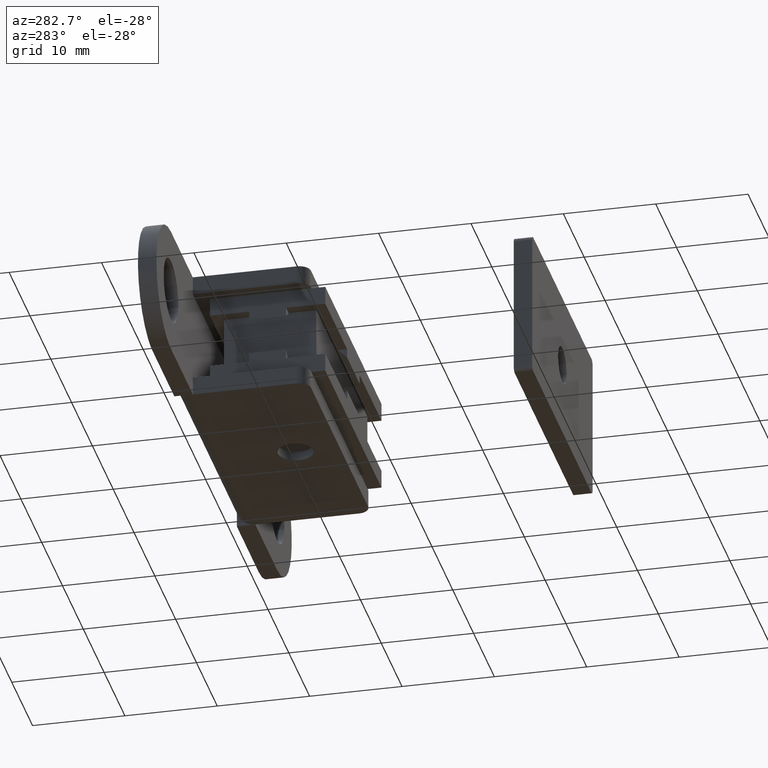
[diagram: clean part render]
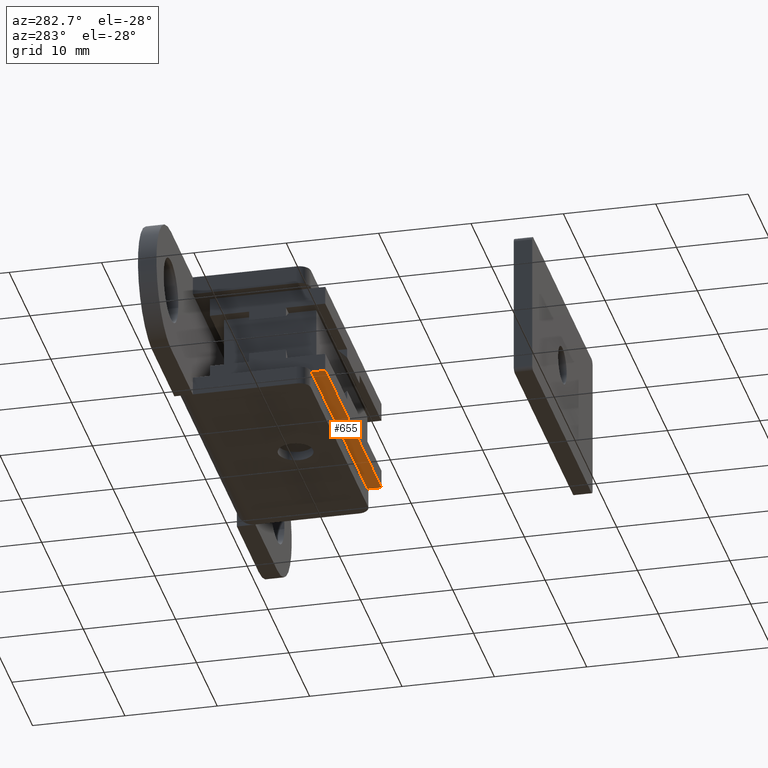
[diagram: same view with one face highlighted and labeled with its STEP entity id]
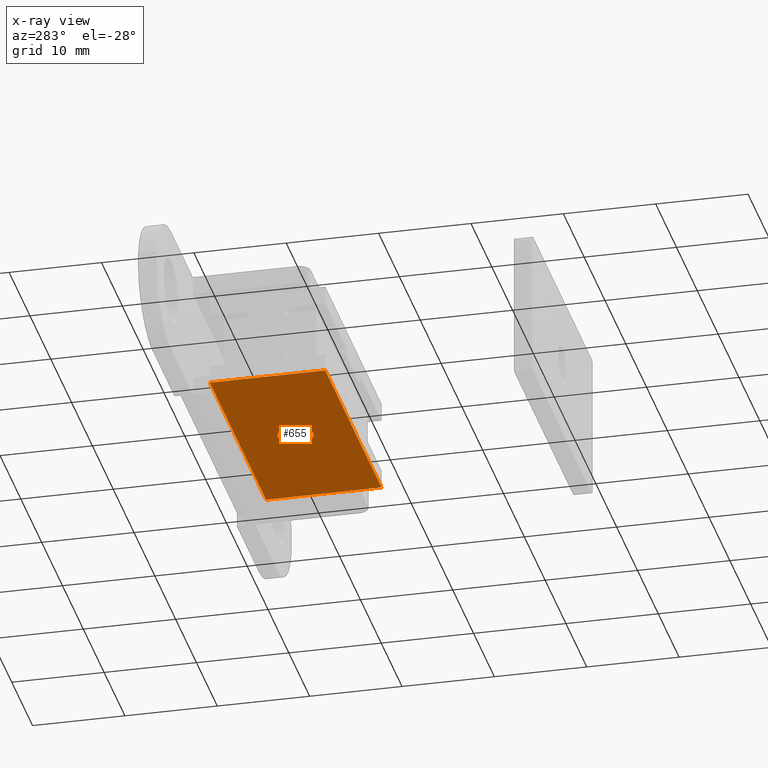
[diagram: x-ray of the same camera — body ghosted, the highlighted face saturated]
A machine part, auxiliary view. The second image highlights one B-rep face of the part: STEP entity #655.
The next image is the same camera in x-ray: the body ghosted, the highlighted face saturated — about 0% of this face is hidden behind the body in this view.
In plain terms, the highlighted face is a freeform B-spline surface patch.
Its self-contained STEP definition (entity closure, byte-faithful):
#62=CARTESIAN_POINT('',(0.235843204208232,-11.635305806236429,5.0));
#63=VERTEX_POINT('',#62);
#64=CARTESIAN_POINT('',(1.900000000000001,-9.750000000000000,5.0));
#65=VERTEX_POINT('',#64);
#66=CARTESIAN_POINT('',(0.235843204208232,-11.635305806236428,5.0));
#67=CARTESIAN_POINT('',(1.900000000000001,-11.427127339825427,5.0));
#68=CARTESIAN_POINT('',(1.900000000000001,-9.750000000000000,5.0));
#76=(BOUNDED_CURVE()B_SPLINE_CURVE(2,(#66,#67,#68),.UNSPECIFIED.,.F.,.U.)B_SPLINE_CURVE_WITH_KNOTS((3,3),(0.271473929016600,0.500000000000000),.UNSPECIFIED.)CURVE()GEOMETRIC_REPRESENTATION_ITEM()RATIONAL_B_SPLINE_CURVE((0.954005430185646,0.732265053947522,1.0))REPRESENTATION_ITEM(''));
#77=EDGE_CURVE('',#63,#65,#76,.T.);
#79=CARTESIAN_POINT('',(-0.016580417801258,-7.850072346181166,5.0));
#80=VERTEX_POINT('',#79);
#81=CARTESIAN_POINT('',(1.900000000000001,-9.750000000000000,5.0));
#82=CARTESIAN_POINT('',(1.900000000000001,-7.849999999999999,4.999999999999999));
#83=CARTESIAN_POINT('',(1.193991E-015,-7.850000000000000,5.0));
#84=CARTESIAN_POINT('',(-0.008290366913696,-7.850000000000000,5.0));
#85=CARTESIAN_POINT('',(-0.016580417801258,-7.850072346181166,5.0));
#93=(BOUNDED_CURVE()B_SPLINE_CURVE(2,(#81,#82,#83,#84,#85),.UNSPECIFIED.,.F.,.U.)B_SPLINE_CURVE_WITH_KNOTS((3,2,3),(0.500000000000000,0.750000000000000,0.751539894400690),.UNSPECIFIED.)CURVE()GEOMETRIC_REPRESENTATION_ITEM()RATIONAL_B_SPLINE_CURVE((1.0,0.707106781186547,1.0,0.998195901489397,0.996414027948352))REPRESENTATION_ITEM(''));
#94=EDGE_CURVE('',#65,#80,#93,.T.);
#165=CARTESIAN_POINT('',(-1.899999999999999,-9.750000000000000,5.0));
#166=VERTEX_POINT('',#165);
#167=CARTESIAN_POINT('',(-1.899999999999999,-9.750000000000000,5.0));
#168=CARTESIAN_POINT('',(-1.899999999999998,-11.650000000000000,4.999999999999999));
#169=CARTESIAN_POINT('',(1.193991E-015,-11.650000000000000,5.0));
#170=CARTESIAN_POINT('',(0.118379362573198,-11.650000000000004,4.999999999999999));
#171=CARTESIAN_POINT('',(0.235843204208232,-11.635305806236428,4.999999999999999));
#179=(BOUNDED_CURVE()B_SPLINE_CURVE(2,(#167,#168,#169,#170,#171),.UNSPECIFIED.,.F.,.U.)B_SPLINE_CURVE_WITH_KNOTS((3,2,3),(0.0,0.250000000000000,0.271473929016600),.UNSPECIFIED.)CURVE()GEOMETRIC_REPRESENTATION_ITEM()RATIONAL_B_SPLINE_CURVE((1.0,0.707106781186547,1.0,0.974841727239025,0.954005430185646))REPRESENTATION_ITEM(''));
#180=EDGE_CURVE('',#166,#63,#179,.T.);
#214=CARTESIAN_POINT('',(-0.016580417801258,-7.850072346181167,5.0));
#215=CARTESIAN_POINT('',(-1.899999999999999,-7.866508700572134,4.999999999999999));
#216=CARTESIAN_POINT('',(-1.899999999999999,-9.750000000000000,5.0));
#224=(BOUNDED_CURVE()B_SPLINE_CURVE(2,(#214,#215,#216),.UNSPECIFIED.,.F.,.U.)B_SPLINE_CURVE_WITH_KNOTS((3,3),(0.751539894400691,1.0),.UNSPECIFIED.)CURVE()GEOMETRIC_REPRESENTATION_ITEM()RATIONAL_B_SPLINE_CURVE((0.996414027948349,0.708910879697152,1.0))REPRESENTATION_ITEM(''));
#225=EDGE_CURVE('',#80,#166,#224,.T.);
#547=CARTESIAN_POINT('',(-13.500000000000000,-3.500000000000085,5.0));
#548=VERTEX_POINT('',#547);
#571=CARTESIAN_POINT('',(-13.500000000000000,-16.0,5.0));
#572=VERTEX_POINT('',#571);
#578=CARTESIAN_POINT('',(-13.500000000000000,-16.0,5.0));
#579=CARTESIAN_POINT('',(-13.500000000000000,-3.500000000000085,5.0));
#580=QUASI_UNIFORM_CURVE('',1,(#578,#579),.UNSPECIFIED.,.F.,.U.);
#581=EDGE_CURVE('',#572,#548,#580,.T.);
#591=CARTESIAN_POINT('',(13.500000000000000,-3.500000000000085,5.0));
#592=VERTEX_POINT('',#591);
#600=CARTESIAN_POINT('',(13.500000000000000,-16.0,5.0));
#601=VERTEX_POINT('',#600);
#602=CARTESIAN_POINT('',(13.500000000000000,-16.0,5.0));
#603=CARTESIAN_POINT('',(13.500000000000000,-3.500000000000085,5.0));
#604=QUASI_UNIFORM_CURVE('',1,(#602,#603),.UNSPECIFIED.,.F.,.U.);
#605=EDGE_CURVE('',#601,#592,#604,.T.);
#630=CARTESIAN_POINT('',(-14.848649947668759,-2.875625024227514,5.0));
#631=CARTESIAN_POINT('',(-14.848649947668759,-16.624375311048698,5.0));
#632=CARTESIAN_POINT('',(14.848650671865190,-2.875625024227514,5.0));
#633=CARTESIAN_POINT('',(14.848650671865190,-16.624375311048698,5.0));
#634=B_SPLINE_SURFACE_WITH_KNOTS('',1,1,((#630,#632),(#631,#633)),.UNSPECIFIED.,.F.,.F.,.U.,(2,2),(2,2),(0.0,13.748750286821190),(0.0,29.697300619533959),.UNSPECIFIED.);
#635=ORIENTED_EDGE('',*,*,#581,.F.);
#636=CARTESIAN_POINT('',(13.500000000000000,-16.0,5.0));
#637=CARTESIAN_POINT('',(-13.500000000000000,-16.0,5.0));
#638=QUASI_UNIFORM_CURVE('',1,(#636,#637),.UNSPECIFIED.,.F.,.U.);
#639=EDGE_CURVE('',#601,#572,#638,.T.);
#640=ORIENTED_EDGE('',*,*,#639,.F.);
#641=ORIENTED_EDGE('',*,*,#605,.T.);
#642=CARTESIAN_POINT('',(13.500000000000000,-3.500000000000085,5.0));
#643=CARTESIAN_POINT('',(-13.500000000000000,-3.500000000000085,5.0));
#644=QUASI_UNIFORM_CURVE('',1,(#642,#643),.UNSPECIFIED.,.F.,.U.);
#645=EDGE_CURVE('',#592,#548,#644,.T.);
#646=ORIENTED_EDGE('',*,*,#645,.T.);
#647=EDGE_LOOP('',(#635,#640,#641,#646));
#648=FACE_OUTER_BOUND('',#647,.T.);
#649=ORIENTED_EDGE('',*,*,#94,.F.);
#650=ORIENTED_EDGE('',*,*,#77,.F.);
#651=ORIENTED_EDGE('',*,*,#180,.F.);
#652=ORIENTED_EDGE('',*,*,#225,.F.);
#653=EDGE_LOOP('',(#649,#650,#651,#652));
#654=FACE_BOUND('',#653,.T.);
#655=ADVANCED_FACE('',(#648,#654),#634,.T.);